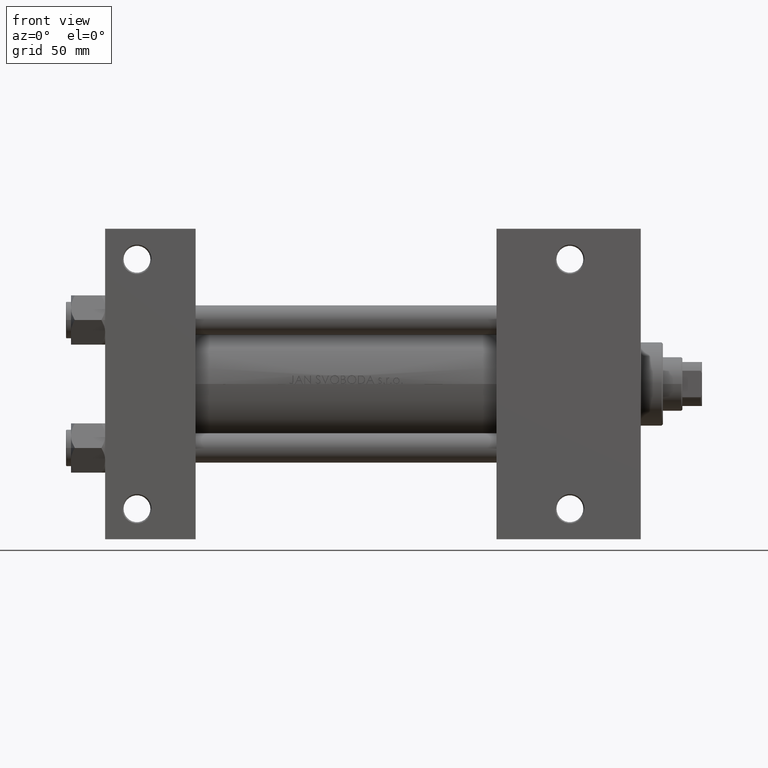
[diagram: clean part render]
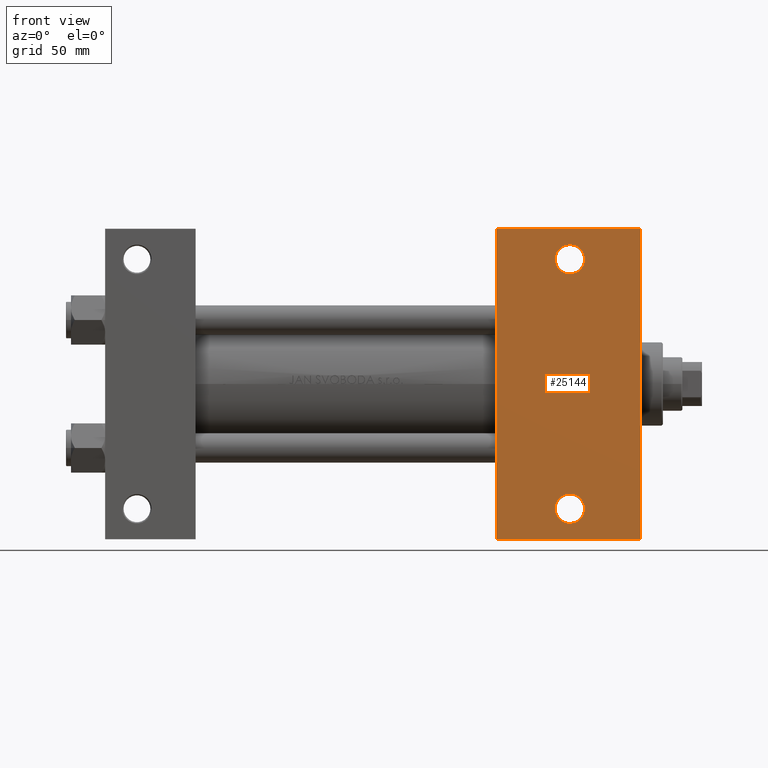
[diagram: same view with one face highlighted and labeled with its STEP entity id]
A machine part, front view. The second image highlights one B-rep face of the part: STEP entity #25144.
In plain terms, the highlighted planar face has unit normal (0, -1, 0).
Its self-contained STEP definition (entity closure, byte-faithful):
#298 = AXIS2_PLACEMENT_3D ( 'NONE', #47105, #5251, #20695 ) ;
#664 = DIRECTION ( 'NONE',  ( 0.000000000000000000, 0.000000000000000000, -1.000000000000000000 ) ) ;
#1141 = CIRCLE ( 'NONE', #44023, 5.999499999999962974 ) ;
#1405 = FACE_OUTER_BOUND ( 'NONE', #26405, .T. ) ;
#1761 = VECTOR ( 'NONE', #5785, 1000.000000000000000 ) ;
#4036 = ORIENTED_EDGE ( 'NONE', *, *, #46076, .T. ) ;
#5251 = DIRECTION ( 'NONE',  ( -0.000000000000000000, -0.000000000000000000, 1.000000000000000000 ) ) ;
#5448 = EDGE_CURVE ( 'NONE', #41717, #7473, #1141, .T. ) ;
#5731 = DIRECTION ( 'NONE',  ( -0.000000000000000000, -0.000000000000000000, 1.000000000000000000 ) ) ;
#5748 = DIRECTION ( 'NONE',  ( 1.000000000000000000, 0.000000000000000000, 0.000000000000000000 ) ) ;
#5785 = DIRECTION ( 'NONE',  ( -1.000000000000000000, -0.000000000000000000, -0.000000000000000000 ) ) ;
#6007 = CARTESIAN_POINT ( 'NONE',  ( 160.0000000000000284, 63.49999999999998579, -37.50000000000000000 ) ) ;
#6532 = CARTESIAN_POINT ( 'NONE',  ( 160.0000000000000000, -63.50000000000001421, -37.50000000000000000 ) ) ;
#6785 = LINE ( 'NONE', #48867, #35483 ) ;
#7473 = VERTEX_POINT ( 'NONE', #48747 ) ;
#7651 = VERTEX_POINT ( 'NONE', #32036 ) ;
#7946 = DIRECTION ( 'NONE',  ( -0.000000000000000000, -0.000000000000000000, 1.000000000000000000 ) ) ;
#8104 = EDGE_CURVE ( 'NONE', #24855, #29161, #16217, .T. ) ;
#8139 = DIRECTION ( 'NONE',  ( -1.000000000000000000, 0.000000000000000000, -0.000000000000000000 ) ) ;
#8584 = VERTEX_POINT ( 'NONE', #8904 ) ;
#8679 = DIRECTION ( 'NONE',  ( -0.000000000000000000, -0.000000000000000000, 1.000000000000000000 ) ) ;
#8904 = CARTESIAN_POINT ( 'NONE',  ( 160.0000000000000284, 63.49999999999998579, -37.50000000000000000 ) ) ;
#9117 = CARTESIAN_POINT ( 'NONE',  ( 219.0000000000000000, 37.50000000000000000, -37.50000000000000000 ) ) ;
#11353 = CARTESIAN_POINT ( 'NONE',  ( 195.9994999999999550, -51.00000000000000711, -37.50000000000000000 ) ) ;
#12169 = CARTESIAN_POINT ( 'NONE',  ( 190.0000000000000000, -51.00000000000000711, -37.50000000000000000 ) ) ;
#12600 = FACE_BOUND ( 'NONE', #39564, .T. ) ;
#12808 = EDGE_CURVE ( 'NONE', #8584, #30496, #6785, .T. ) ;
#12900 = DIRECTION ( 'NONE',  ( -1.000000000000000000, 0.000000000000000000, 0.000000000000000000 ) ) ;
#13516 = AXIS2_PLACEMENT_3D ( 'NONE', #9117, #664, #8139 ) ;
#15653 = CARTESIAN_POINT ( 'NONE',  ( 190.0000000000000000, -51.00000000000000711, -37.50000000000000000 ) ) ;
#16217 = CIRCLE ( 'NONE', #17011, 5.999499999999962974 ) ;
#17011 = AXIS2_PLACEMENT_3D ( 'NONE', #34196, #5731, #35673 ) ;
#17019 = EDGE_CURVE ( 'NONE', #8584, #22801, #39919, .T. ) ;
#17033 = ORIENTED_EDGE ( 'NONE', *, *, #29954, .T. ) ;
#18891 = ORIENTED_EDGE ( 'NONE', *, *, #5448, .T. ) ;
#20695 = DIRECTION ( 'NONE',  ( -1.000000000000000000, 0.000000000000000000, 0.000000000000000000 ) ) ;
#21796 = CIRCLE ( 'NONE', #298, 5.999499999999962974 ) ;
#22801 = VERTEX_POINT ( 'NONE', #35423 ) ;
#23137 = CARTESIAN_POINT ( 'NONE',  ( 160.0000000000000000, -63.50000000000001421, -37.50000000000000000 ) ) ;
#23967 = CARTESIAN_POINT ( 'NONE',  ( 184.0005000000000450, 51.00000000000000000, -37.50000000000000000 ) ) ;
#24747 = EDGE_CURVE ( 'NONE', #7473, #41717, #36764, .T. ) ;
#24855 = VERTEX_POINT ( 'NONE', #31870 ) ;
#25144 = ADVANCED_FACE ( 'NONE', ( #12600, #34831, #1405 ), #43292, .T. ) ;
#25236 = EDGE_CURVE ( 'NONE', #22801, #7651, #44719, .T. ) ;
#25237 = LINE ( 'NONE', #6532, #1761 ) ;
#26405 = EDGE_LOOP ( 'NONE', ( #33414, #31764, #31815, #17033 ) ) ;
#27094 = AXIS2_PLACEMENT_3D ( 'NONE', #12169, #8679, #12900 ) ;
#29161 = VERTEX_POINT ( 'NONE', #23967 ) ;
#29284 = CARTESIAN_POINT ( 'NONE',  ( 219.0000000000000000, 37.50000000000000000, -37.50000000000000000 ) ) ;
#29746 = ORIENTED_EDGE ( 'NONE', *, *, #8104, .T. ) ;
#29954 = EDGE_CURVE ( 'NONE', #7651, #30496, #25237, .T. ) ;
#30496 = VERTEX_POINT ( 'NONE', #23137 ) ;
#31764 = ORIENTED_EDGE ( 'NONE', *, *, #17019, .T. ) ;
#31815 = ORIENTED_EDGE ( 'NONE', *, *, #25236, .T. ) ;
#31870 = CARTESIAN_POINT ( 'NONE',  ( 195.9994999999999550, 51.00000000000000000, -37.50000000000000000 ) ) ;
#32036 = CARTESIAN_POINT ( 'NONE',  ( 219.0000000000000284, -63.50000000000001421, -37.50000000000000000 ) ) ;
#33414 = ORIENTED_EDGE ( 'NONE', *, *, #12808, .F. ) ;
#33615 = EDGE_LOOP ( 'NONE', ( #35146, #18891 ) ) ;
#34196 = CARTESIAN_POINT ( 'NONE',  ( 190.0000000000000000, 51.00000000000000000, -37.50000000000000000 ) ) ;
#34630 = DIRECTION ( 'NONE',  ( -1.000000000000000000, 0.000000000000000000, 0.000000000000000000 ) ) ;
#34831 = FACE_BOUND ( 'NONE', #33615, .T. ) ;
#35146 = ORIENTED_EDGE ( 'NONE', *, *, #24747, .T. ) ;
#35423 = CARTESIAN_POINT ( 'NONE',  ( 219.0000000000000568, 63.49999999999998579, -37.50000000000000000 ) ) ;
#35483 = VECTOR ( 'NONE', #37688, 1000.000000000000000 ) ;
#35673 = DIRECTION ( 'NONE',  ( -1.000000000000000000, 0.000000000000000000, 0.000000000000000000 ) ) ;
#36507 = VECTOR ( 'NONE', #5748, 1000.000000000000000 ) ;
#36761 = DIRECTION ( 'NONE',  ( 0.000000000000000000, -1.000000000000000000, 0.000000000000000000 ) ) ;
#36764 = CIRCLE ( 'NONE', #27094, 5.999499999999962974 ) ;
#37688 = DIRECTION ( 'NONE',  ( 0.000000000000000000, -1.000000000000000000, 0.000000000000000000 ) ) ;
#39564 = EDGE_LOOP ( 'NONE', ( #4036, #29746 ) ) ;
#39919 = LINE ( 'NONE', #6007, #36507 ) ;
#41418 = VECTOR ( 'NONE', #36761, 1000.000000000000000 ) ;
#41717 = VERTEX_POINT ( 'NONE', #11353 ) ;
#43292 = PLANE ( 'NONE',  #13516 ) ;
#44023 = AXIS2_PLACEMENT_3D ( 'NONE', #15653, #7946, #34630 ) ;
#44719 = LINE ( 'NONE', #29284, #41418 ) ;
#46076 = EDGE_CURVE ( 'NONE', #29161, #24855, #21796, .T. ) ;
#47105 = CARTESIAN_POINT ( 'NONE',  ( 190.0000000000000000, 51.00000000000000000, -37.50000000000000000 ) ) ;
#48747 = CARTESIAN_POINT ( 'NONE',  ( 184.0005000000000450, -51.00000000000000711, -37.50000000000000000 ) ) ;
#48867 = CARTESIAN_POINT ( 'NONE',  ( 160.0000000000000000, 37.50000000000000000, -37.50000000000000000 ) ) ;